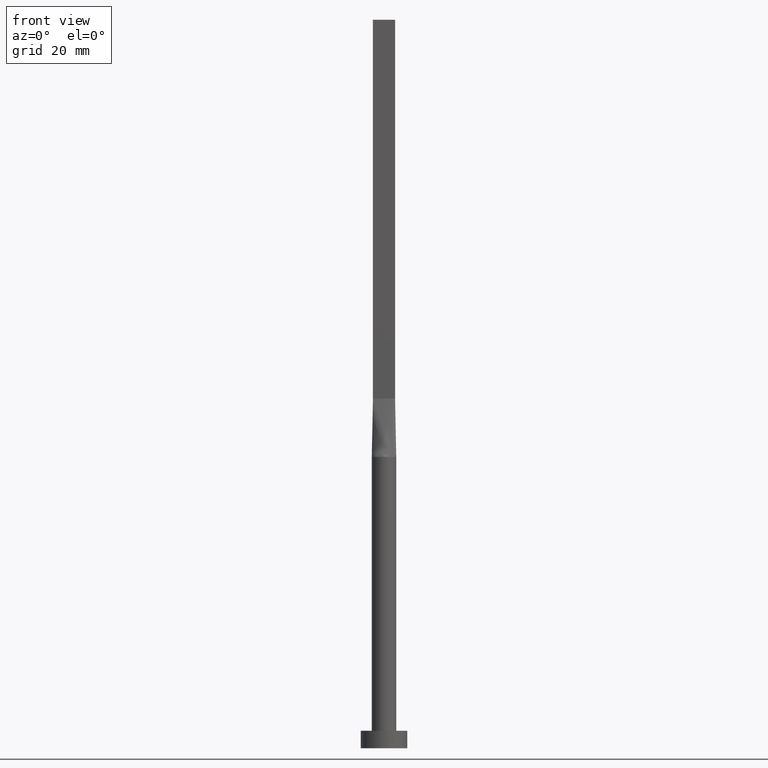
[diagram: clean part render]
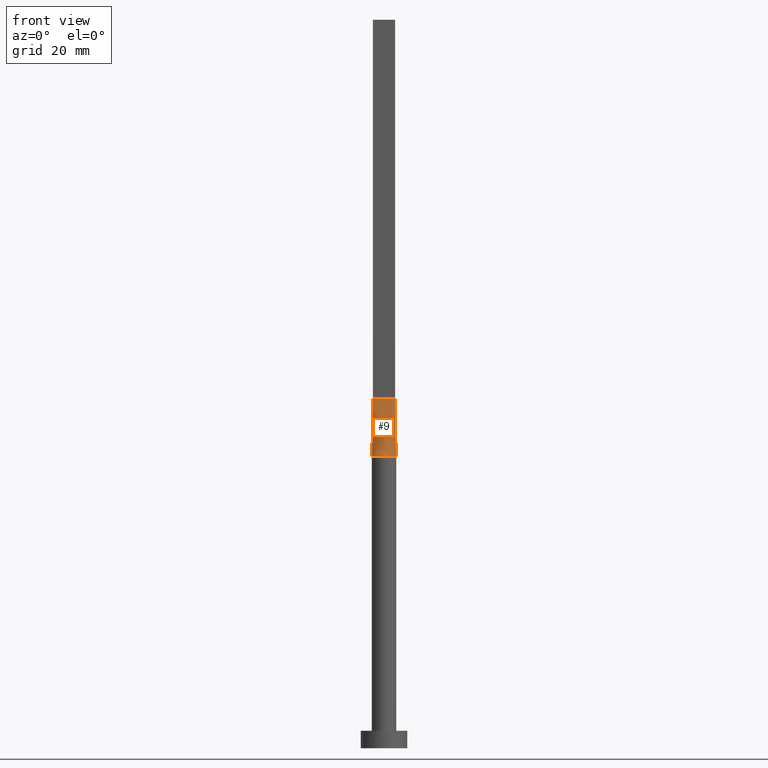
[diagram: same view with one face highlighted and labeled with its STEP entity id]
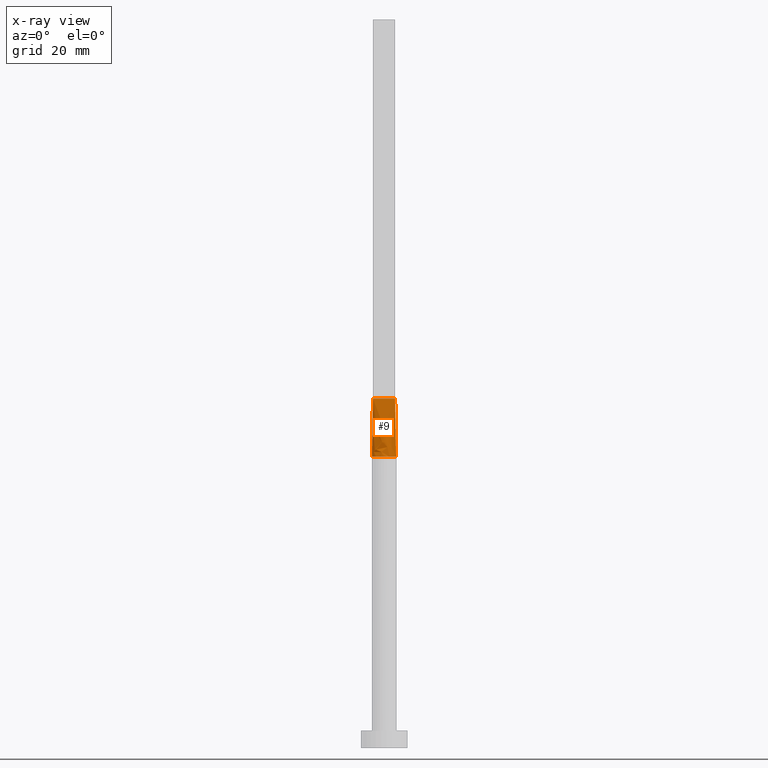
[diagram: x-ray of the same camera — body ghosted, the highlighted face saturated]
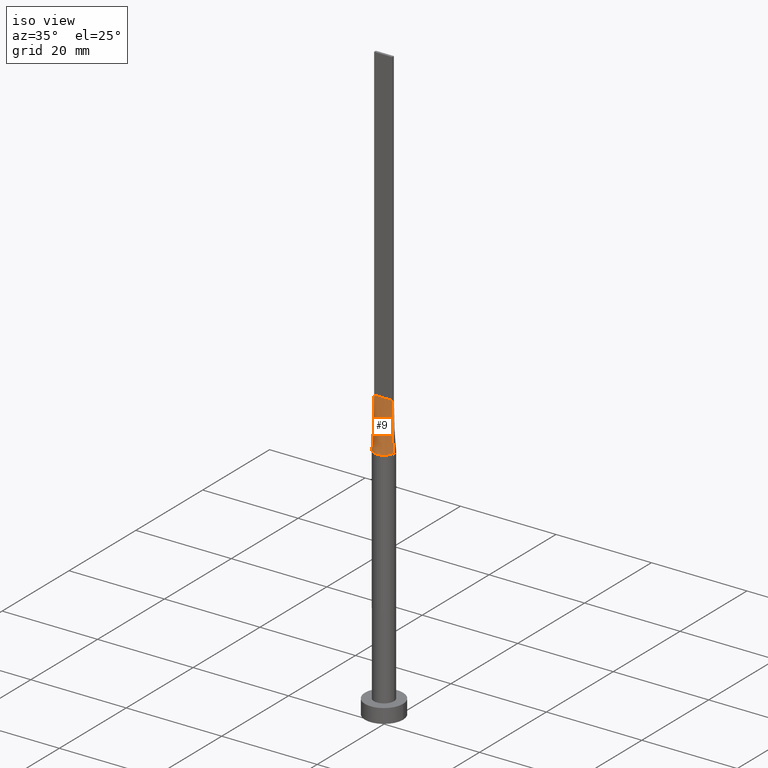
[diagram: same view with one face highlighted and labeled with its STEP entity id]
A machine part, front view. The second image highlights one B-rep face of the part: STEP entity #9.
The next image is the same camera in x-ray: the body ghosted, the highlighted face saturated — about 0% of this face is hidden behind the body in this view.
A second angle (iso view) of the same face is appended — the face is thin or edge-on in the first view.
In plain terms, the highlighted face is a freeform B-spline surface patch.
Its self-contained STEP definition (entity closure, byte-faithful):
#3 = CARTESIAN_POINT ( 'NONE',  ( -1.719140910005030998, -1.233222546295087652, 49.99999999999999289 ) ) ;
#6 = CARTESIAN_POINT ( 'NONE',  ( 1.144666002056101028, -1.784802689656028507, 50.00000000000000000 ) ) ;
#8 = CARTESIAN_POINT ( 'NONE',  ( -1.899999999999999911, -0.2499999999999995837, 60.00000000000000711 ) ) ;
#9 = ADVANCED_FACE ( 'NONE', ( #566 ), #49, .T. ) ;
#32 = VERTEX_POINT ( 'NONE', #65 ) ;
#41 = CARTESIAN_POINT ( 'NONE',  ( -1.583333333333332371, -0.2499999999999995837, 60.00000000000000000 ) ) ;
#45 = CARTESIAN_POINT ( 'NONE',  ( 2.082054020639342085, -0.2739544763999143262, 50.00000000000000000 ) ) ;
#49 = B_SPLINE_SURFACE_WITH_KNOTS ( 'NONE', 3, 1, ( 
 ( #525, #311 ),
 ( #478, #83 ),
 ( #439, #41 ),
 ( #231, #490 ),
 ( #3, #539 ),
 ( #96, #404 ),
 ( #137, #234 ),
 ( #52, #86 ),
 ( #93, #495 ),
 ( #398, #444 ),
 ( #320, #100 ),
 ( #6, #236 ),
 ( #449, #269 ),
 ( #272, #55 ),
 ( #488, #447 ),
 ( #229, #192 ),
 ( #537, #271 ),
 ( #45, #409 ) ),
 .UNSPECIFIED., .F., .F., .F.,
 ( 4, 2, 2, 2, 2, 2, 2, 2, 4 ),
 ( 2, 2 ),
 ( 0.000000000000000000, 0.1249999999999999722, 0.2500000000000000000, 0.3750000000000000000, 0.5000000000000000000, 0.6250000000000001110, 0.7500000000000000000, 0.8750000000000000000, 1.000000000000000000 ),
 ( 0.000000000000000000, 1.000000000000000000 ),
 .UNSPECIFIED. ) ;
#52 = CARTESIAN_POINT ( 'NONE',  ( -0.6126365619873365143, -2.029890967560283865, 49.99999999999999289 ) ) ;
#55 = CARTESIAN_POINT ( 'NONE',  ( 1.108333333333334059, -0.2499999999999996669, 60.00000000000000000 ) ) ;
#56 = EDGE_CURVE ( 'NONE', #443, #295, #288, .T. ) ;
#59 = DIRECTION ( 'NONE',  ( 1.000000000000000000, 0.000000000000000000, 0.000000000000000000 ) ) ;
#65 = CARTESIAN_POINT ( 'NONE',  ( -1.899999999999999911, -0.2499999999999995837, 60.00000000000000711 ) ) ;
#75 = ORIENTED_EDGE ( 'NONE', *, *, #325, .T. ) ;
#83 = CARTESIAN_POINT ( 'NONE',  ( -1.741666666666666252, -0.2499999999999995837, 60.00000000000000000 ) ) ;
#86 = CARTESIAN_POINT ( 'NONE',  ( -0.3166666666666646535, -0.2499999999999995837, 60.00000000000000000 ) ) ;
#93 = CARTESIAN_POINT ( 'NONE',  ( -0.3069641454662052071, -2.100000000000000089, 50.00000000000000711 ) ) ;
#95 = DIRECTION ( 'NONE',  ( 1.000000000000000000, -5.706327223607918787E-17, 0.000000000000000000 ) ) ;
#96 = CARTESIAN_POINT ( 'NONE',  ( -1.370324685961210820, -1.611984358543462337, 50.00000000000000711 ) ) ;
#100 = CARTESIAN_POINT ( 'NONE',  ( 0.3166666666666686503, -0.2499999999999996669, 60.00000000000000000 ) ) ;
#137 = CARTESIAN_POINT ( 'NONE',  ( -1.144666002056103249, -1.784802689656026953, 50.00000000000000000 ) ) ;
#142 = CARTESIAN_POINT ( 'NONE',  ( 0.000000000000000000, 0.000000000000000000, 50.00000000000000000 ) ) ;
#174 = ORIENTED_EDGE ( 'NONE', *, *, #278, .T. ) ;
#192 = CARTESIAN_POINT ( 'NONE',  ( 1.583333333333333037, -0.2499999999999997224, 60.00000000000000000 ) ) ;
#229 = CARTESIAN_POINT ( 'NONE',  ( 2.013179673790352897, -0.6348343983169382199, 49.99999999999997868 ) ) ;
#231 = CARTESIAN_POINT ( 'NONE',  ( -1.843490440271193354, -1.028323931880309461, 49.99999999999997158 ) ) ;
#232 = CIRCLE ( 'NONE', #503, 2.100000000000000089 ) ;
#234 = CARTESIAN_POINT ( 'NONE',  ( -0.6333333333333313053, -0.2499999999999995837, 60.00000000000000000 ) ) ;
#236 = CARTESIAN_POINT ( 'NONE',  ( 0.6333333333333350801, -0.2499999999999996669, 60.00000000000000000 ) ) ;
#241 = DIRECTION ( 'NONE',  ( 0.000000000000000000, 0.000000000000000000, 1.000000000000000000 ) ) ;
#268 = EDGE_LOOP ( 'NONE', ( #75, #477, #352, #174 ) ) ;
#269 = CARTESIAN_POINT ( 'NONE',  ( 0.7916666666666680729, -0.2499999999999996669, 60.00000000000000000 ) ) ;
#271 = CARTESIAN_POINT ( 'NONE',  ( 1.741666666666666030, -0.2499999999999997780, 60.00000000000000000 ) ) ;
#272 = CARTESIAN_POINT ( 'NONE',  ( 1.719140910005029443, -1.233222546295088984, 50.00000000000000711 ) ) ;
#278 = EDGE_CURVE ( 'NONE', #32, #520, #542, .T. ) ;
#288 = LINE ( 'NONE', #371, #441 ) ;
#289 = CARTESIAN_POINT ( 'NONE',  ( -2.082216547150284924, -0.2739753355370637133, 50.00000000000000000 ) ) ;
#293 = CARTESIAN_POINT ( 'NONE',  ( 2.082216499796571085, -0.2739752411676472654, 50.00000000000000000 ) ) ;
#295 = VERTEX_POINT ( 'NONE', #494 ) ;
#308 = EDGE_CURVE ( 'NONE', #32, #295, #448, .T. ) ;
#311 = CARTESIAN_POINT ( 'NONE',  ( -1.899999999999999911, -0.2499999999999995837, 60.00000000000000711 ) ) ;
#320 = CARTESIAN_POINT ( 'NONE',  ( 0.6126365619873340718, -2.029890967560283865, 49.99999999999999289 ) ) ;
#325 = EDGE_CURVE ( 'NONE', #520, #443, #232, .T. ) ;
#352 = ORIENTED_EDGE ( 'NONE', *, *, #308, .F. ) ;
#355 = VECTOR ( 'NONE', #95, 1000.000000000000000 ) ;
#364 = CARTESIAN_POINT ( 'NONE',  ( -1.991027010319671220, -0.2619772381999561084, 55.00000000000000711 ) ) ;
#371 = CARTESIAN_POINT ( 'NONE',  ( 1.991027010319670776, -0.2619772381999571076, 55.00000000000000711 ) ) ;
#398 = CARTESIAN_POINT ( 'NONE',  ( 0.3069641454662038194, -2.100000000000000089, 50.00000000000001421 ) ) ;
#404 = CARTESIAN_POINT ( 'NONE',  ( -0.7916666666666647423, -0.2499999999999995837, 60.00000000000000000 ) ) ;
#409 = CARTESIAN_POINT ( 'NONE',  ( 1.899999999999999023, -0.2499999999999997780, 60.00000000000000711 ) ) ;
#419 = VECTOR ( 'NONE', #453, 1000.000000000000114 ) ;
#421 = DIRECTION ( 'NONE',  ( -0.01820233363815273661, 0.002395043899757038752, 0.9998314552037476099 ) ) ;
#439 = CARTESIAN_POINT ( 'NONE',  ( -2.013179673790353341, -0.6348343983169372207, 49.99999999999999289 ) ) ;
#441 = VECTOR ( 'NONE', #421, 1000.000000000000114 ) ;
#443 = VERTEX_POINT ( 'NONE', #293 ) ;
#444 = CARTESIAN_POINT ( 'NONE',  ( 0.1583333333333353243, -0.2499999999999996669, 60.00000000000000000 ) ) ;
#447 = CARTESIAN_POINT ( 'NONE',  ( 1.266666666666667052, -0.2499999999999996669, 60.00000000000000000 ) ) ;
#448 = LINE ( 'NONE', #8, #355 ) ;
#449 = CARTESIAN_POINT ( 'NONE',  ( 1.370324685961208599, -1.611984358543463447, 50.00000000000000711 ) ) ;
#453 = DIRECTION ( 'NONE',  ( -0.01820233363815268804, -0.002395043899756892601, -0.9998314552037476099 ) ) ;
#477 = ORIENTED_EDGE ( 'NONE', *, *, #56, .T. ) ;
#478 = CARTESIAN_POINT ( 'NONE',  ( -2.059419575438525385, -0.4459762599261209992, 50.00000000000000711 ) ) ;
#488 = CARTESIAN_POINT ( 'NONE',  ( 1.843490440271193354, -1.028323931880311459, 49.99999999999999289 ) ) ;
#490 = CARTESIAN_POINT ( 'NONE',  ( -1.266666666666665275, -0.2499999999999995837, 60.00000000000000000 ) ) ;
#494 = CARTESIAN_POINT ( 'NONE',  ( 1.899999999999999023, -0.2499999999999997780, 60.00000000000000711 ) ) ;
#495 = CARTESIAN_POINT ( 'NONE',  ( -0.1583333333333314108, -0.2499999999999996392, 60.00000000000000000 ) ) ;
#503 = AXIS2_PLACEMENT_3D ( 'NONE', #142, #241, #59 ) ;
#520 = VERTEX_POINT ( 'NONE', #289 ) ;
#525 = CARTESIAN_POINT ( 'NONE',  ( -2.082054020639342529, -0.2739544763999126609, 50.00000000000000000 ) ) ;
#537 = CARTESIAN_POINT ( 'NONE',  ( 2.059419575438525385, -0.4459762599261227201, 50.00000000000001421 ) ) ;
#539 = CARTESIAN_POINT ( 'NONE',  ( -1.108333333333331616, -0.2499999999999995837, 59.99999999999999289 ) ) ;
#542 = LINE ( 'NONE', #364, #419 ) ;
#566 = FACE_OUTER_BOUND ( 'NONE', #268, .T. ) ;